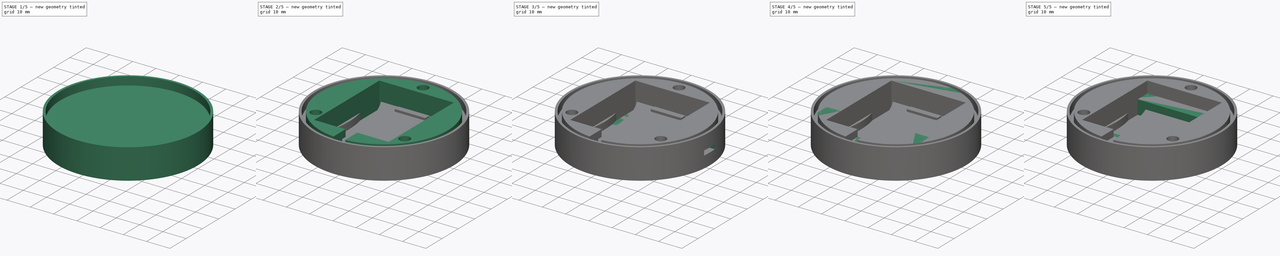
[diagram: build sequence overview — one tinted view per stage of 5, left to right]
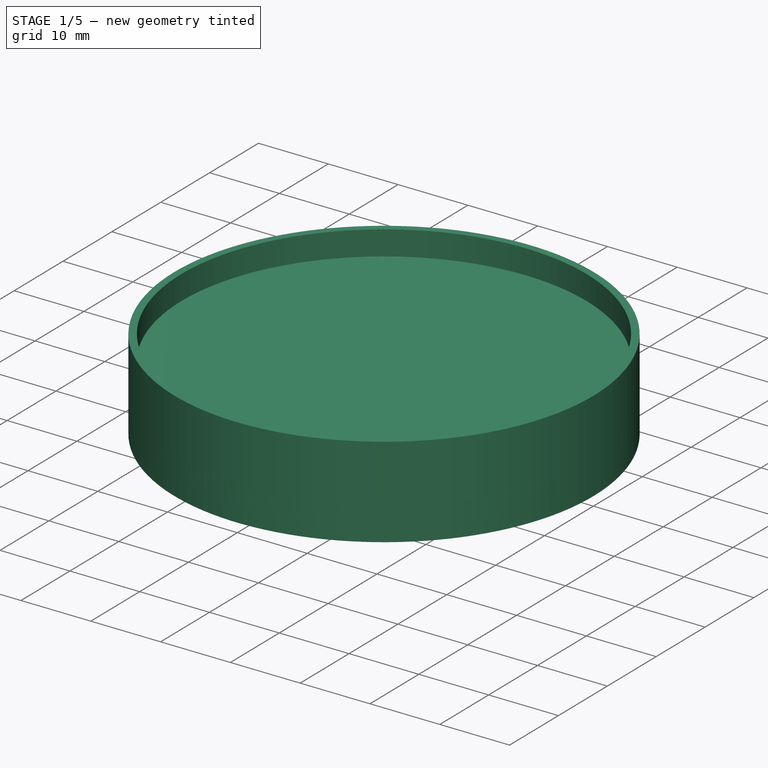
[diagram: stage 1 of 5 — iso view after this stage's code; geometry added in this stage tinted green]
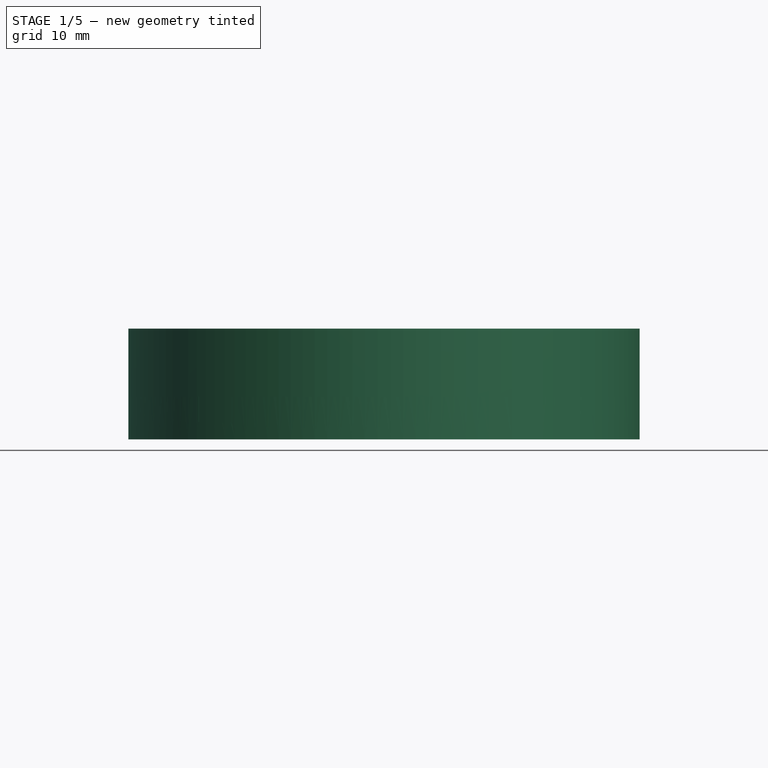
[diagram: stage 1 of 5 — front view after this stage's code; geometry added in this stage tinted green]
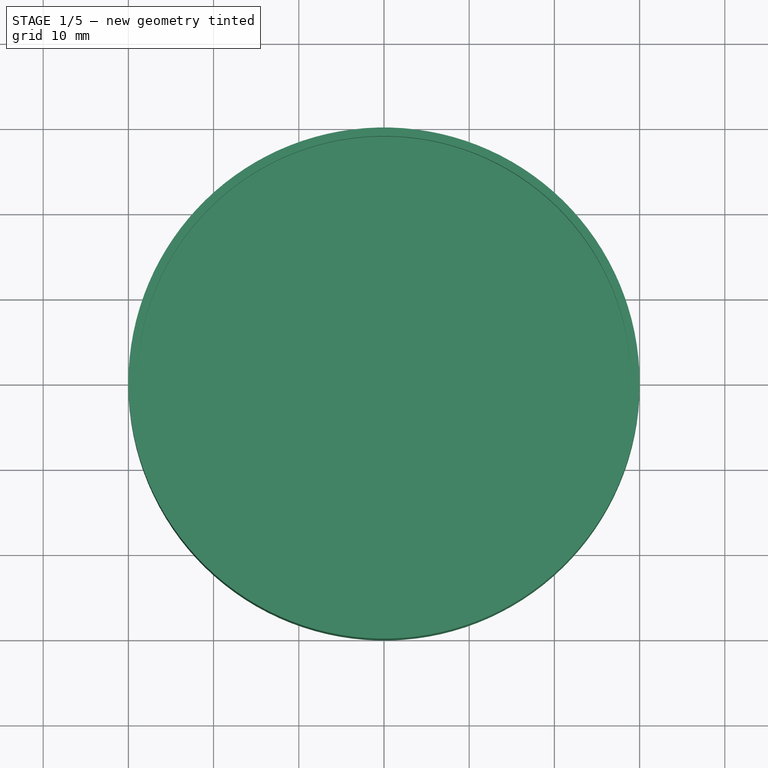
[diagram: stage 1 of 5 — top view after this stage's code; geometry added in this stage tinted green]
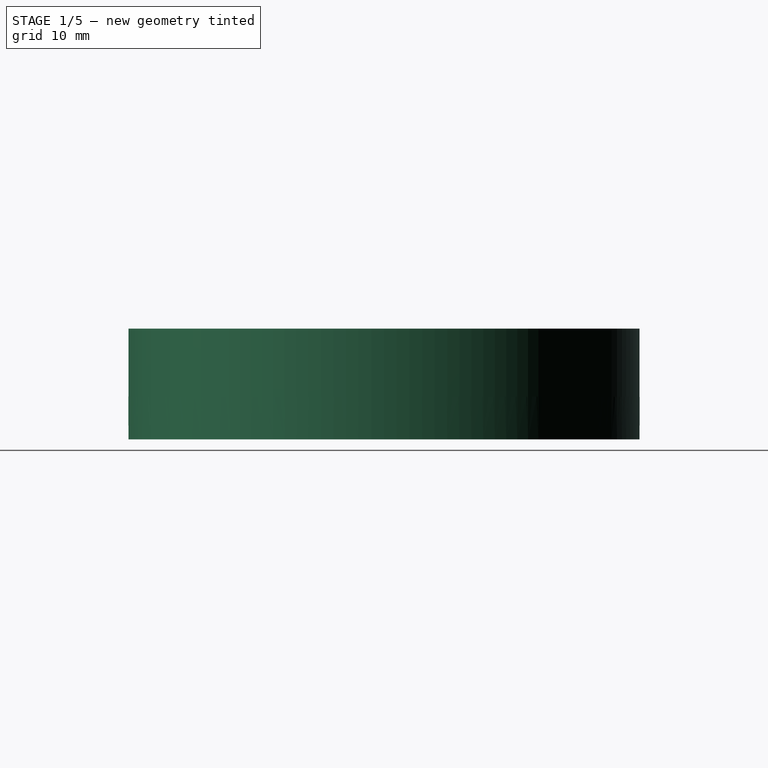
[diagram: stage 1 of 5 — right view after this stage's code; geometry added in this stage tinted green]
FCSTD DOCUMENT  (FreeCAD 0.19R24276 (Git))
Label: NecklaceCaseSmaller
License: All rights reserved
LicenseURL: http://en.wikipedia.org/wiki/All_rights_reserved
objects: Sketcher::SketchObject×32, PartDesign::Pocket×21, PartDesign::Pad×10, PartDesign::Body×6, Part::Feature×1
note: 101 computed .brp shape members not serialized (recipe doc carries the construction recipe); baked Part::Feature solids carry a one-line shape summary decoded from their .brp

FEATURE [Sketcher::SketchObject] Sketch008
  FullyConstrained = true
  MapMode = 5
  Support = -> [XY_Plane003]
  sketch-geometry (1):
    g0: Circle CenterX=0 CenterY=0 CenterZ=0 NormalX=0 NormalY=0 NormalZ=1 AngleXU=0 Radius=30
  constraints (2):
    c: Coincident(g0,g-1)
    c: Diameter(g0) = 60
FEATURE [PartDesign::Pad] Pad004
  Direction = (1,1,1)
  Length = 5
  Length2 = 100
  Profile = -> Sketch008
  Type = 0
FEATURE [Sketcher::SketchObject] Sketch009
  FullyConstrained = true
  MapMode = 5
  Placement = pos=(0,0,5) rot=(0,0,1;0rad)
  Support = -> [Pad004]
  sketch-geometry (2):
    g0: Circle CenterX=-50 CenterY=0 CenterZ=0 NormalX=0 NormalY=0 NormalZ=1 AngleXU=0 Radius=40
    g1: Circle CenterX=-50 CenterY=0 CenterZ=0 NormalX=0 NormalY=0 NormalZ=1 AngleXU=0 Radius=35
  constraints (6):
    c: PointOnObject(g0,g-1)
    c: PointOnObject(g1,g-1)
    c: Diameter(g0) = 80
    c: Diameter(g1) = 70
    c: DistanceX(g0,g-1) = 50
    c: DistanceX(g1,g-1) = 50
FEATURE [PartDesign::Pocket] Pocket002
  BaseFeature = -> Pad004
  Length = 3
  Length2 = 100
  Profile = -> Sketch009
  Type = 0
FEATURE [Sketcher::SketchObject] Sketch015
  FullyConstrained = true
  MapMode = 5
  Placement = pos=(0,0,5) rot=(0,0,1;0rad)
  Support = -> [Pocket002]
  sketch-geometry (3):
    g0: Circle CenterX=-24 CenterY=0 CenterZ=0 NormalX=0 NormalY=0 NormalZ=1 AngleXU=0 Radius=1.75
    g1: Circle CenterX=14.5208 CenterY=19.1088 CenterZ=0 NormalX=0 NormalY=0 NormalZ=1 AngleXU=0 Radius=1.75
    g2: Circle CenterX=14.5208 CenterY=-19.1088 CenterZ=0 NormalX=0 NormalY=0 NormalZ=1 AngleXU=0 Radius=1.75
  constraints (9):
    c: Diameter(g0) = 3.5
    c: Diameter(g1) = 3.5
    c: Diameter(g2) = 3.5
    c: DistanceY(g-1,g0) = 0
    c: Distance(g-1,g0) = 24
    c: Distance(g-1,g1) = 24
    c: Distance(g-1,g2) = 24
    c: Distance(g0,g1) = 43
    c: Distance(g0,g2) = 43
FEATURE [PartDesign::Pocket] Pocket008
  BaseFeature = -> Pocket002
  Length = 5
  Length2 = 100
  Profile = -> Sketch015
  Type = 0
FEATURE [PartDesign::Body] Body004  label="ring"
  Group = -> [Sketch025,Pad005,Sketch026,Pocket017]
  Origin = -> Origin004
  Placement = pos=(0,0,23) rot=(0,0,1;0rad)
  Tip = -> Pocket017
FEATURE [Sketcher::SketchObject] Sketch027
  FullyConstrained = true
  MapMode = 5
  Support = -> [XY_Plane005]
  sketch-geometry (1):
    g0: Circle CenterX=0 CenterY=0 CenterZ=0 NormalX=0 NormalY=0 NormalZ=1 AngleXU=0 Radius=30
  constraints (2):
    c: Coincident(g0,g-1)
    c: Diameter(g0) = 60
FEATURE [PartDesign::Pad] Pad006
  Direction = (1,1,1)
  Length = 13
  Length2 = 100
  Profile = -> Sketch027
  Type = 0
FEATURE [Sketcher::SketchObject] Sketch028
  FullyConstrained = true
  MapMode = 5
  Placement = pos=(0,0,13) rot=(0,0,1;0rad)
  Support = -> [Pad006]
  sketch-geometry (1):
    g0: Circle CenterX=0 CenterY=0 CenterZ=0 NormalX=0 NormalY=0 NormalZ=1 AngleXU=0 Radius=29
  constraints (2):
    c: Coincident(g0,g-1)
    c: Diameter(g0) = 58
FEATURE [PartDesign::Pocket] Pocket018
  BaseFeature = -> Pad006
  Length = 3.5
  Length2 = 100
  Profile = -> Sketch028
  Type = 0
FEATURE [PartDesign::Body] Body005  label="ALT-bottom-upsidedown"
  Group = -> [Sketch027,Pad006,Sketch028,Pocket018,Sketch029,Pad007,Sketch031,Pocket020,Sketch032,Pocket021,Sketch033,Pocket022,Sketch034,Pocket023,Sketch035,Pocket024,Sketch036,Pocket025,Sketch037,Pad008]
  Origin = -> Origin005
  Placement = pos=(0,0,5) rot=(0,0,1;1.5708rad)
  Tip = -> Pad008
FEATURE [Sketcher::SketchObject] Sketch038
  FullyConstrained = true
  MapMode = 5
  Placement = pos=(0,0,5) rot=(0,0,1;0rad)
  Support = -> [Pocket008]
  sketch-geometry (4):
    g0: LineSegment StartX=-6.6 StartY=18.5 StartZ=0 EndX=6.6 EndY=18.5 EndZ=0
    g1: LineSegment StartX=6.6 StartY=18.5 StartZ=0 EndX=6.6 EndY=16 EndZ=0
    g2: LineSegment StartX=6.6 StartY=16 StartZ=0 EndX=-6.6 EndY=16 EndZ=0
    g3: LineSegment StartX=-6.6 StartY=16 StartZ=0 EndX=-6.6 EndY=18.5 EndZ=0
  constraints (11):
    c: Coincident(g0,g1)
    c: Coincident(g1,g2)
    c: Coincident(g2,g3)
    c: Coincident(g3,g0)
    c: Horizontal(g0)
    c: Vertical(g1)
    c: Vertical(g3)
    c: DistanceY(g1,g1) = 2.5
    c: DistanceX(g2,g2) = 13.2
    c: Symmetric(g2,g1,g-2)
    c: DistanceY(g-1,g1) = 16
FEATURE [PartDesign::Pad] Pad009
  BaseFeature = -> Pocket008
  Direction = (1,1,1)
  Length = 1
  Length2 = 100
  Profile = -> Sketch038
  Type = 0
FEATURE [PartDesign::Body] Body003  label="attachment layer"
  Group = -> [Sketch008,Pad004,Sketch009,Pocket002,Sketch015,Pocket008,Sketch038,Pad009]
  Origin = -> Origin003
  Tip = -> Pad009
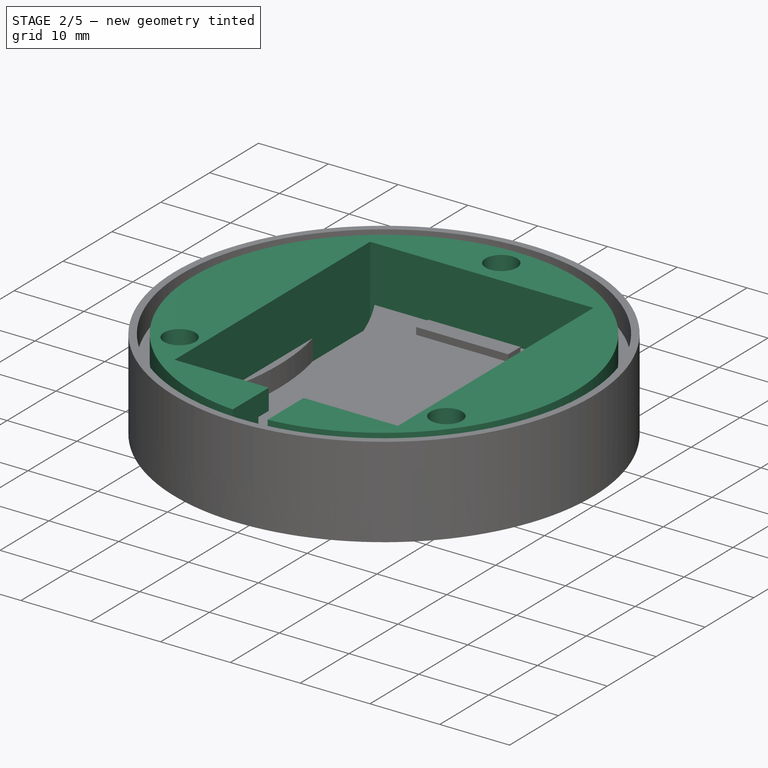
[diagram: stage 2 of 5 — iso view after this stage's code; geometry added in this stage tinted green]
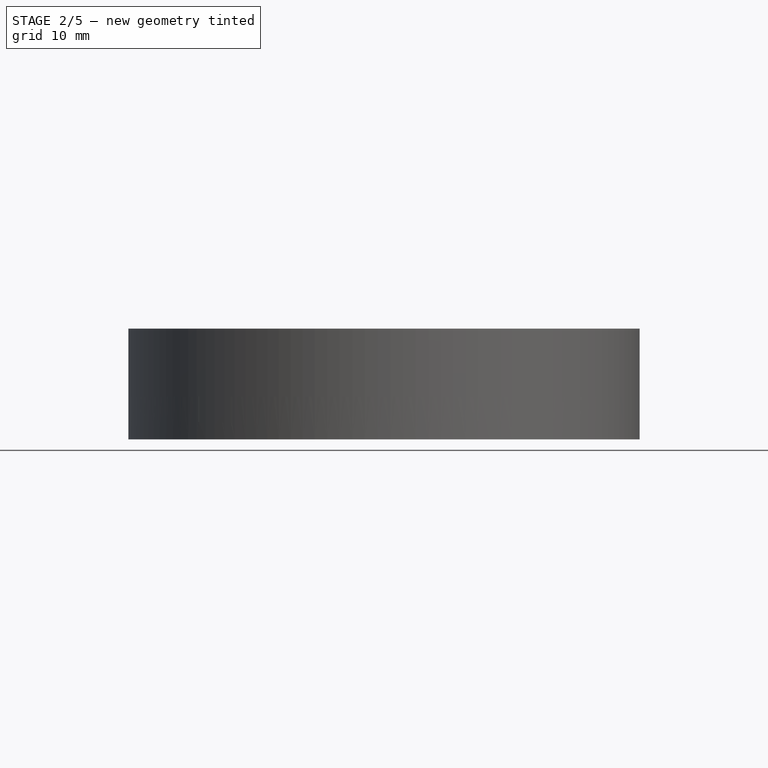
[diagram: stage 2 of 5 — front view after this stage's code; geometry added in this stage tinted green]
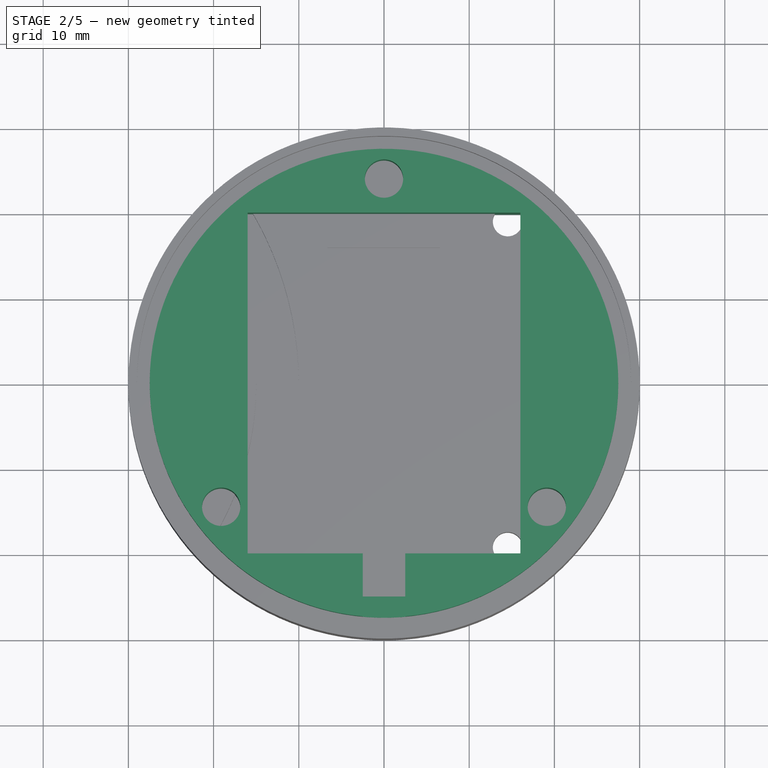
[diagram: stage 2 of 5 — top view after this stage's code; geometry added in this stage tinted green]
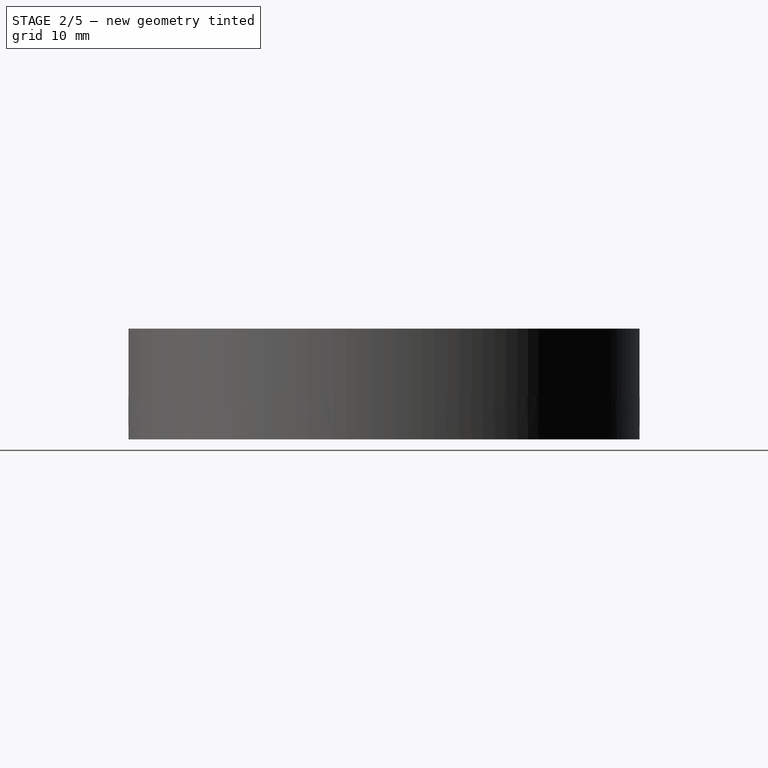
[diagram: stage 2 of 5 — right view after this stage's code; geometry added in this stage tinted green]
FEATURE [Sketcher::SketchObject] Sketch029
  FullyConstrained = true
  MapMode = 5
  Placement = pos=(0,0,9.5) rot=(0,0,1;0rad)
  Support = -> [Pocket018]
  sketch-geometry (1):
    g0: Circle CenterX=0 CenterY=0 CenterZ=0 NormalX=0 NormalY=0 NormalZ=1 AngleXU=0 Radius=27.5
  constraints (2):
    c: Coincident(g0,g-1)
    c: Diameter(g0) = 55
FEATURE [PartDesign::Pad] Pad007
  BaseFeature = -> Pocket018
  Direction = (1,1,1)
  Length = 3.5
  Length2 = 100
  Profile = -> Sketch029
  Type = 0
FEATURE [Sketcher::SketchObject] Sketch031
  FullyConstrained = true
  MapMode = 5
  Placement = pos=(0,0,13) rot=(0,0,1;0rad)
  sketch-geometry (4):
    g0: LineSegment StartX=-16 StartY=20 StartZ=0 EndX=16 EndY=20 EndZ=0
    g1: LineSegment StartX=16 StartY=20 StartZ=0 EndX=16 EndY=-20 EndZ=0
    g2: LineSegment StartX=16 StartY=-20 StartZ=0 EndX=-16 EndY=-20 EndZ=0
    g3: LineSegment StartX=-16 StartY=-20 StartZ=0 EndX=-16 EndY=20 EndZ=0
  constraints (10):
    c: Coincident(g0,g1)
    c: Coincident(g1,g2)
    c: Coincident(g2,g3)
    c: Coincident(g3,g0)
    c: Horizontal(g2)
    c: Vertical(g3)
    c: DistanceX(g0,g0) = 32
    c: Symmetric(g0,g0,g-2)
    c: DistanceY(g1,g1) = 40
    c: Symmetric(g1,g0,g-1)
FEATURE [PartDesign::Pocket] Pocket020
  BaseFeature = -> Pad007
  Length = 13
  Length2 = 100
  Profile = -> Sketch031
  Type = 0
FEATURE [Sketcher::SketchObject] Sketch032
  FullyConstrained = true
  MapMode = 5
  Placement = pos=(0,-20,0) rot=(0,0.707107,0.707107;3.14159rad)
  Support = -> [Pocket020]
  sketch-geometry (4):
    g0: LineSegment StartX=-2.5 StartY=13 StartZ=0 EndX=2.5 EndY=13 EndZ=0
    g1: LineSegment StartX=2.5 StartY=13 StartZ=0 EndX=2.5 EndY=10 EndZ=0
    g2: LineSegment StartX=2.5 StartY=10 StartZ=0 EndX=-2.5 EndY=10 EndZ=0
    g3: LineSegment StartX=-2.5 StartY=10 StartZ=0 EndX=-2.5 EndY=13 EndZ=0
  constraints (11):
    c: Coincident(g0,g1)
    c: Coincident(g1,g2)
    c: Coincident(g2,g3)
    c: Coincident(g3,g0)
    c: Horizontal(g0)
    c: Vertical(g1)
    c: Vertical(g3)
    c: DistanceX(g2,g2) = 5
    c: Symmetric(g2,g1,g-2)
    c: DistanceY(g-1,g0) = 13
    c: DistanceY(g3,g3) = 3
FEATURE [PartDesign::Pocket] Pocket021
  BaseFeature = -> Pocket020
  Length = 8
  Length2 = 100
  Profile = -> Sketch032
  Type = 0
FEATURE [Sketcher::SketchObject] Sketch033
  FullyConstrained = true
  MapMode = 5
  Placement = pos=(0,0,13) rot=(0,0,1;0rad)
  Support = -> [Pocket021]
  sketch-geometry (3):
    g0: Circle CenterX=-19.1088 CenterY=-14.5208 CenterZ=0 NormalX=0 NormalY=0 NormalZ=1 AngleXU=0 Radius=2.25
    g1: Circle CenterX=0 CenterY=24 CenterZ=0 NormalX=0 NormalY=0 NormalZ=1 AngleXU=0 Radius=2.25
    g2: Circle CenterX=19.1088 CenterY=-14.5208 CenterZ=0 NormalX=0 NormalY=0 NormalZ=1 AngleXU=0 Radius=2.25
  constraints (9):
    c: Distance(g-1,g1) = 24
    c: Distance(g2,g-1) = 24
    c: Distance(g0,g-1) = 24
    c: Diameter(g0) = 4.5
    c: Diameter(g1) = 4.5
    c: Diameter(g2) = 4.5
    c: Distance(g1,g2) = 43
    c: Distance(g1,g0) = 43
    c: DistanceX(g-1,g1) = 0
FEATURE [PartDesign::Pocket] Pocket022
  BaseFeature = -> Pocket021
  Length = 20
  Length2 = 100
  Profile = -> Sketch033
  Type = 0
FEATURE [Sketcher::SketchObject] Sketch034
  FullyConstrained = true
  MapMode = 5
  Placement = pos=(0,0,0) rot=(1,0,0;3.14159rad)
  Support = -> [Pocket022]
  sketch-geometry (4):
    g0: LineSegment StartX=-4 StartY=25 StartZ=0 EndX=4 EndY=25 EndZ=0
    g1: LineSegment StartX=4 StartY=25 StartZ=0 EndX=4 EndY=20 EndZ=0
    g2: LineSegment StartX=4 StartY=20 StartZ=0 EndX=-4 EndY=20 EndZ=0
    g3: LineSegment StartX=-4 StartY=20 StartZ=0 EndX=-4 EndY=25 EndZ=0
  constraints (11):
    c: Coincident(g0,g1)
    c: Coincident(g1,g2)
    c: Coincident(g2,g3)
    c: Coincident(g3,g0)
    c: Horizontal(g0)
    c: Vertical(g1)
    c: Vertical(g3)
    c: DistanceY(g1,g1) = 5
    c: DistanceX(g0,g0) = 8
    c: Symmetric(g2,g1,g-2)
    c: DistanceY(g-1,g1) = 20
FEATURE [PartDesign::Pocket] Pocket023
  BaseFeature = -> Pocket022
  Length = 10
  Length2 = 100
  Profile = -> Sketch034
  Type = 0
FEATURE [Sketcher::SketchObject] Sketch035
  FullyConstrained = true
  MapMode = 5
  Placement = pos=(16,0,0) rot=(0.57735,-0.57735,-0.57735;2.0944rad)
  Support = -> [Pocket023]
  sketch-geometry (4):
    g0: LineSegment StartX=-6.6 StartY=7 StartZ=0 EndX=6.6 EndY=7 EndZ=0
    g1: LineSegment StartX=6.6 StartY=7 StartZ=0 EndX=6.6 EndY=0 EndZ=0
    g2: LineSegment StartX=6.6 StartY=0 StartZ=0 EndX=-6.6 EndY=0 EndZ=0
    g3: LineSegment StartX=-6.6 StartY=0 StartZ=0 EndX=-6.6 EndY=7 EndZ=0
  constraints (11):
    c: Coincident(g0,g1)
    c: Coincident(g1,g2)
    c: Coincident(g2,g3)
    c: Coincident(g3,g0)
    c: Horizontal(g0)
    c: Vertical(g1)
    c: Vertical(g3)
    c: PointOnObject(g2,g-1)
    c: Symmetric(g2,g1,g-2)
    c: DistanceY(g1,g1) = 7
    c: DistanceX(g0,g0) = 13.2
FEATURE [PartDesign::Pocket] Pocket024
  BaseFeature = -> Pocket023
  Length = 9
  Length2 = 100
  Profile = -> Sketch035
  Type = 0
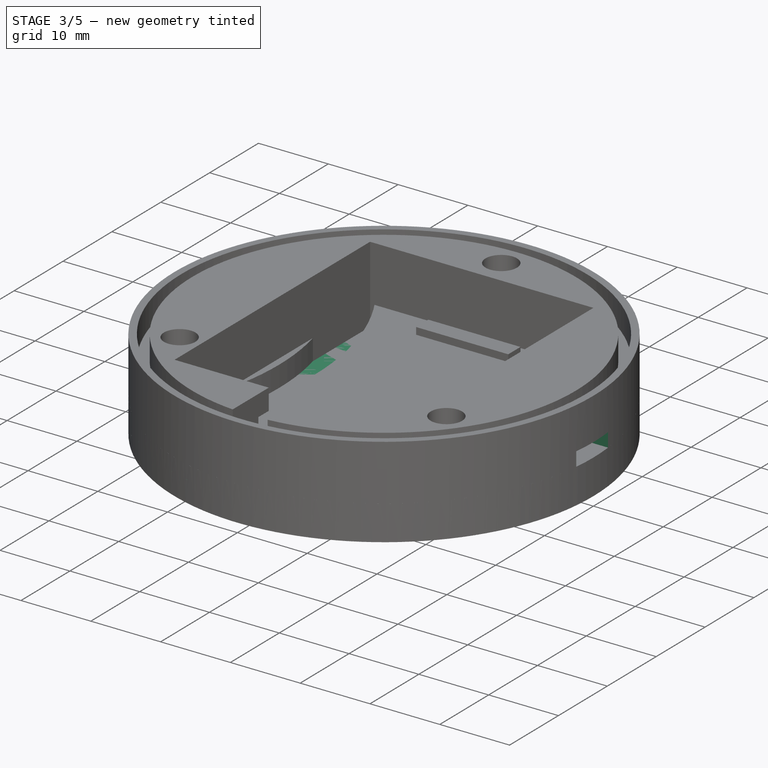
[diagram: stage 3 of 5 — iso view after this stage's code; geometry added in this stage tinted green]
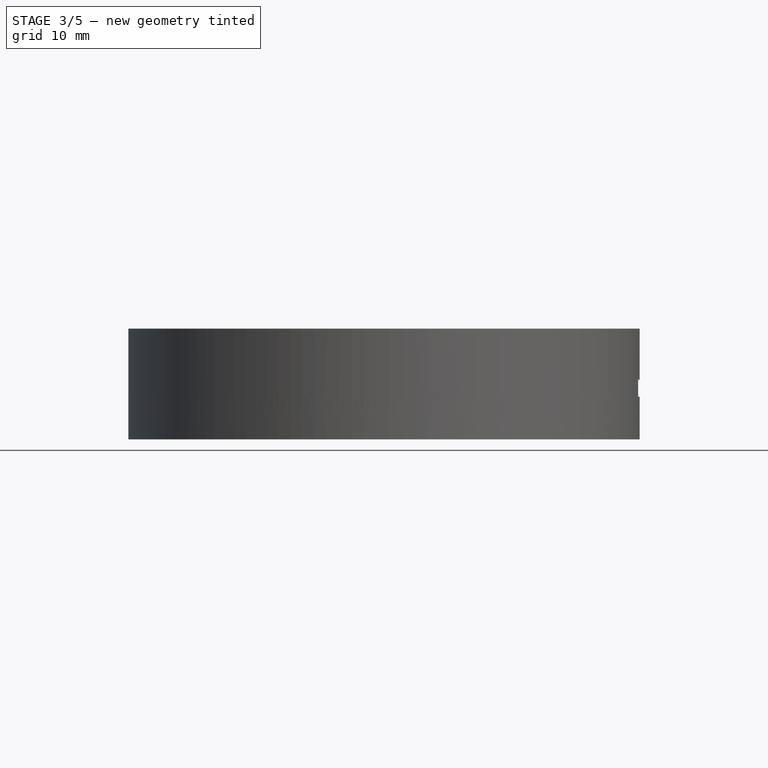
[diagram: stage 3 of 5 — front view after this stage's code; geometry added in this stage tinted green]
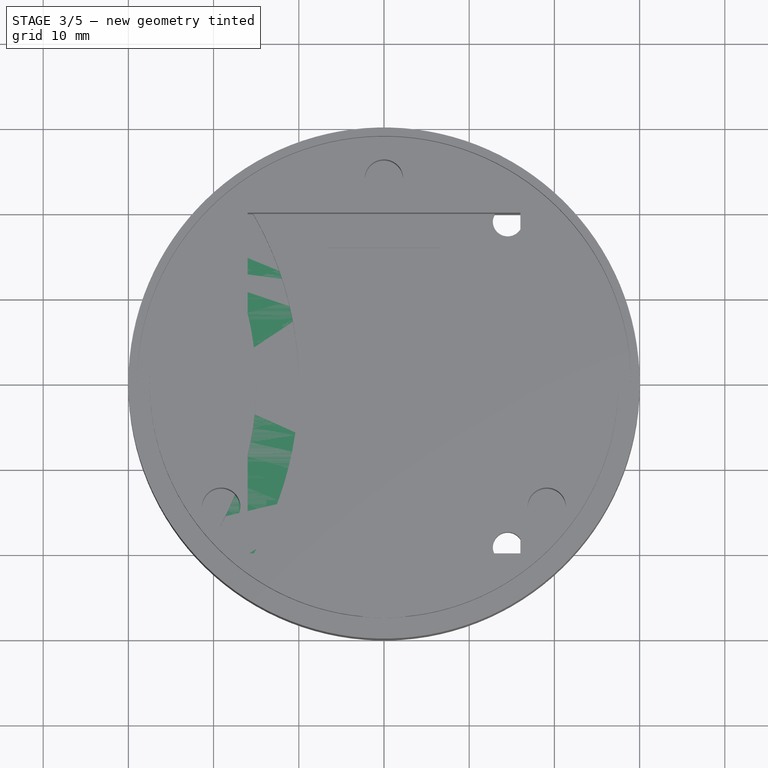
[diagram: stage 3 of 5 — top view after this stage's code; geometry added in this stage tinted green]
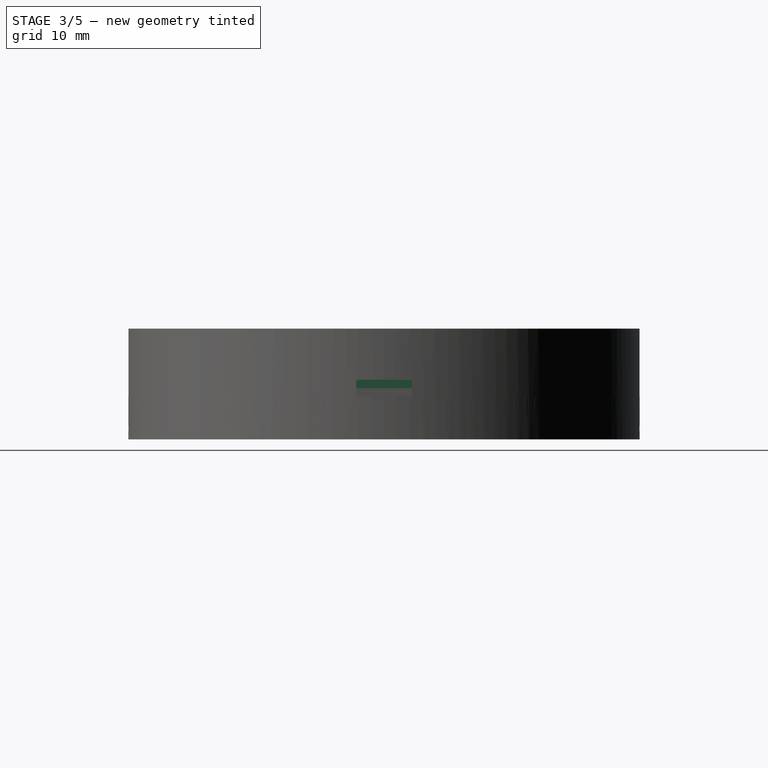
[diagram: stage 3 of 5 — right view after this stage's code; geometry added in this stage tinted green]
FEATURE [Sketcher::SketchObject] Sketch003
  FullyConstrained = true
  MapMode = 5
  Support = -> [XY_Plane001]
  sketch-geometry (1):
    g0: Circle CenterX=0 CenterY=0 CenterZ=0 NormalX=0 NormalY=0 NormalZ=1 AngleXU=0 Radius=30
  constraints (2):
    c: Coincident(g-1,g0)
    c: Diameter(g0) = 60
FEATURE [PartDesign::Pad] Pad001
  Direction = (1,1,1)
  Length = 2
  Length2 = 100
  Profile = -> Sketch003
  Type = 0
FEATURE [PartDesign::Body] Body002  label="bottom"
  Group = -> [Sketch005,Pad002,Sketch006,Pocket001,Sketch007,Pad003,Sketch010,Pocket003,Sketch018,Pocket011,Sketch020,Pocket012,Sketch023,Pocket015]
  Origin = -> Origin002
  Placement = pos=(0,0,5) rot=(0,0,1;1.5708rad)
  Tip = -> Pocket015
FEATURE [Sketcher::SketchObject] Sketch012
  FullyConstrained = true
  MapMode = 5
  Placement = pos=(0,0,2) rot=(0,0,1;0rad)
  Support = -> [Pad001]
  sketch-geometry (4):
    g0: Circle CenterX=14.5208 CenterY=19.1088 CenterZ=0 NormalX=0 NormalY=0 NormalZ=1 AngleXU=0 Radius=1.75
    g1: Circle CenterX=-24 CenterY=0 CenterZ=0 NormalX=0 NormalY=0 NormalZ=1 AngleXU=0 Radius=1.75
    g2: Circle CenterX=14.5208 CenterY=-19.1088 CenterZ=0 NormalX=0 NormalY=0 NormalZ=1 AngleXU=0 Radius=1.75
    g3: Circle CenterX=0 CenterY=0 CenterZ=0 NormalX=0 NormalY=0 NormalZ=1 AngleXU=0 Radius=40
  constraints (11):
    c: PointOnObject(g1,g-1)
    c: Diameter(g1) = 3.5
    c: Diameter(g2) = 3.5
    c: Diameter(g0) = 3.5
    c: DistanceX(g1,g-1) = 24
    c: Radius(g3) = 40
    c: Coincident(g3,g-1)
    c: Distance(g0,g-1) = 24
    c: Distance(g-1,g2) = 24
    c: Distance(g1,g0) = 43
    c: Distance(g1,g2) = 43
FEATURE [PartDesign::Pocket] Pocket005
  BaseFeature = -> Pad001
  Length = 5
  Length2 = 100
  Profile = -> Sketch012
  Type = 0
FEATURE [Sketcher::SketchObject] Sketch024
  FullyConstrained = true
  MapMode = 5
  Placement = pos=(0,0,2) rot=(0,0,1;0rad)
  Support = -> [Pocket005]
  sketch-geometry (8):
    g0: LineSegment StartX=-9 StartY=12 StartZ=0 EndX=16 EndY=12 EndZ=0
    g1: LineSegment StartX=16 StartY=12 StartZ=0 EndX=16 EndY=8.5 EndZ=0
    g2: LineSegment StartX=16 StartY=8.5 StartZ=0 EndX=-9 EndY=8.5 EndZ=0
    g3: LineSegment StartX=-9 StartY=8.5 StartZ=0 EndX=-9 EndY=12 EndZ=0
    g4: LineSegment StartX=-4 StartY=-8.5 StartZ=0 EndX=16 EndY=-8.5 EndZ=0
    g5: LineSegment StartX=16 StartY=-8.5 StartZ=0 EndX=16 EndY=-12 EndZ=0
    g6: LineSegment StartX=16 StartY=-12 StartZ=0 EndX=-4 EndY=-12 EndZ=0
    g7: LineSegment StartX=-4 StartY=-12 StartZ=0 EndX=-4 EndY=-8.5 EndZ=0
  constraints (24):
    c: Coincident(g0,g1)
    c: Coincident(g1,g2)
    c: Coincident(g2,g3)
    c: Coincident(g3,g0)
    c: Horizontal(g0)
    c: Horizontal(g2)
    c: Vertical(g1)
    c: Vertical(g3)
    c: Coincident(g4,g5)
    c: Coincident(g5,g6)
    c: Coincident(g6,g7)
    c: Coincident(g7,g4)
    c: Horizontal(g4)
    c: Horizontal(g6)
    c: Vertical(g5)
    c: Vertical(g7)
    c: DistanceX(g0,g0) = 25
    c: DistanceY(g1,g1) = 3.5
    c: DistanceY(g5,g5) = 3.5
    c: DistanceX(g4,g4) = 20
    c: DistanceY(g4,g-1) = 8.5
    c: DistanceY(g-1,g2) = 8.5
    c: DistanceX(g-1,g1) = 16
    c: DistanceX(g-1,g4) = 16
FEATURE [PartDesign::Pocket] Pocket016
  BaseFeature = -> Pocket005
  Length = 5
  Length2 = 100
  Profile = -> Sketch024
  Type = 0
FEATURE [PartDesign::Body] Body001  label="top"
  Group = -> [Sketch003,Pad001,Sketch012,Pocket005,Sketch024,Pocket016]
  Origin = -> Origin001
  Placement = pos=(0,0,26) rot=(0,0,1;0rad)
  Tip = -> Pocket016
FEATURE [Sketcher::SketchObject] Sketch025
  FullyConstrained = true
  MapMode = 5
  Support = -> [XY_Plane004]
  sketch-geometry (1):
    g0: Circle CenterX=0 CenterY=0 CenterZ=0 NormalX=0 NormalY=0 NormalZ=1 AngleXU=0 Radius=30
  constraints (2):
    c: Coincident(g0,g-1)
    c: Radius(g0) = 30
FEATURE [PartDesign::Pad] Pad005
  Direction = (1,1,1)
  Length = 3
  Length2 = 100
  Profile = -> Sketch025
  Type = 0
FEATURE [Sketcher::SketchObject] Sketch026
  FullyConstrained = true
  MapMode = 5
  Placement = pos=(0,0,3) rot=(0,0,1;0rad)
  Support = -> [Pad005]
  sketch-geometry (1):
    g0: Circle CenterX=0 CenterY=0 CenterZ=0 NormalX=0 NormalY=0 NormalZ=1 AngleXU=0 Radius=28
  constraints (2):
    c: Coincident(g0,g-1)
    c: Diameter(g0) = 56
FEATURE [PartDesign::Pocket] Pocket017
  BaseFeature = -> Pad005
  Length = 5
  Length2 = 100
  Profile = -> Sketch026
  Type = 0
FEATURE [Sketcher::SketchObject] Sketch036
  FullyConstrained = true
  MapMode = 5
  Placement = pos=(25,0,0) rot=(0.57735,-0.57735,-0.57735;2.0944rad)
  Support = -> [Pocket024]
  sketch-geometry (4):
    g0: LineSegment StartX=-3.25 StartY=7 StartZ=0 EndX=3.25 EndY=7 EndZ=0
    g1: LineSegment StartX=3.25 StartY=7 StartZ=0 EndX=3.25 EndY=0 EndZ=0
    g2: LineSegment StartX=3.25 StartY=0 StartZ=0 EndX=-3.25 EndY=0 EndZ=0
    g3: LineSegment StartX=-3.25 StartY=0 StartZ=0 EndX=-3.25 EndY=7 EndZ=0
  constraints (11):
    c: Coincident(g0,g1)
    c: Coincident(g1,g2)
    c: Coincident(g2,g3)
    c: Coincident(g3,g0)
    c: Horizontal(g2)
    c: Vertical(g1)
    c: Vertical(g3)
    c: PointOnObject(g1,g-1)
    c: Symmetric(g0,g0,g-2)
    c: DistanceY(g3,g3) = 7
    c: DistanceX(g2,g2) = 6.5
FEATURE [PartDesign::Pocket] Pocket025
  BaseFeature = -> Pocket024
  Length = 5
  Length2 = 100
  Profile = -> Sketch036
  Type = 0
FEATURE [Sketcher::SketchObject] Sketch037
  FullyConstrained = true
  MapMode = 5
  Placement = pos=(0,0,7) rot=(1,0,0;3.14159rad)
  Support = -> [Pocket025]
  sketch-geometry (4):
    g0: LineSegment StartX=16 StartY=6.6 StartZ=0 EndX=18 EndY=6.6 EndZ=0
    g1: LineSegment StartX=18 StartY=6.6 StartZ=0 EndX=18 EndY=-6.6 EndZ=0
    g2: LineSegment StartX=18 StartY=-6.6 StartZ=0 EndX=16 EndY=-6.6 EndZ=0
    g3: LineSegment StartX=16 StartY=-6.6 StartZ=0 EndX=16 EndY=6.6 EndZ=0
  constraints (11):
    c: Coincident(g0,g1)
    c: Coincident(g1,g2)
    c: Coincident(g2,g3)
    c: Coincident(g3,g0)
    c: Horizontal(g0)
    c: Horizontal(g2)
    c: Vertical(g1)
    c: DistanceX(g2,g2) = 2
    c: DistanceY(g1,g1) = 13.2
    c: Symmetric(g0,g2,g-1)
    c: DistanceX(g-1,g0) = 16
FEATURE [PartDesign::Pad] Pad008
  BaseFeature = -> Pocket025
  Direction = (1,1,1)
  Length = 1
  Length2 = 100
  Profile = -> Sketch037
  Type = 0
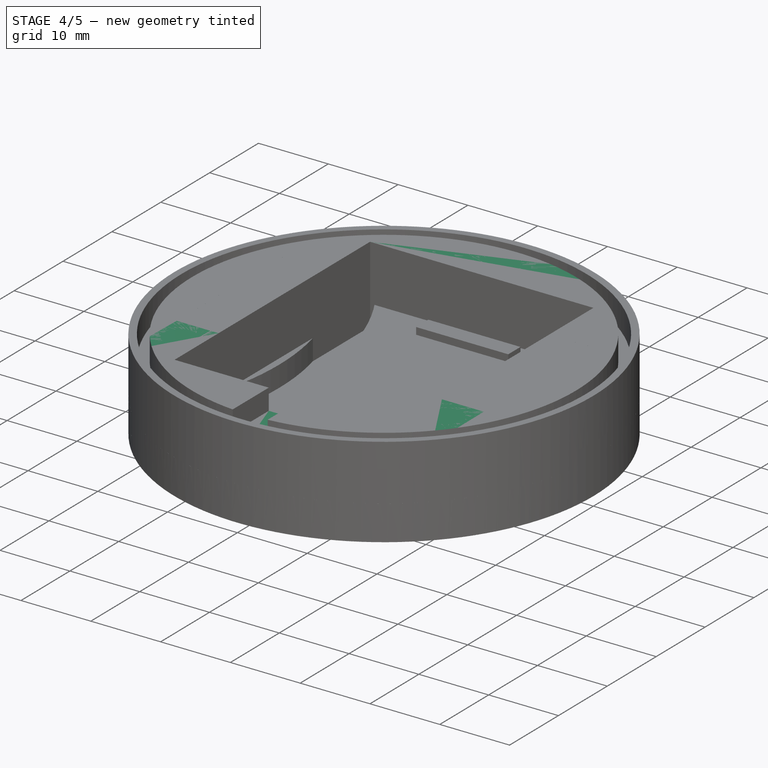
[diagram: stage 4 of 5 — iso view after this stage's code; geometry added in this stage tinted green]
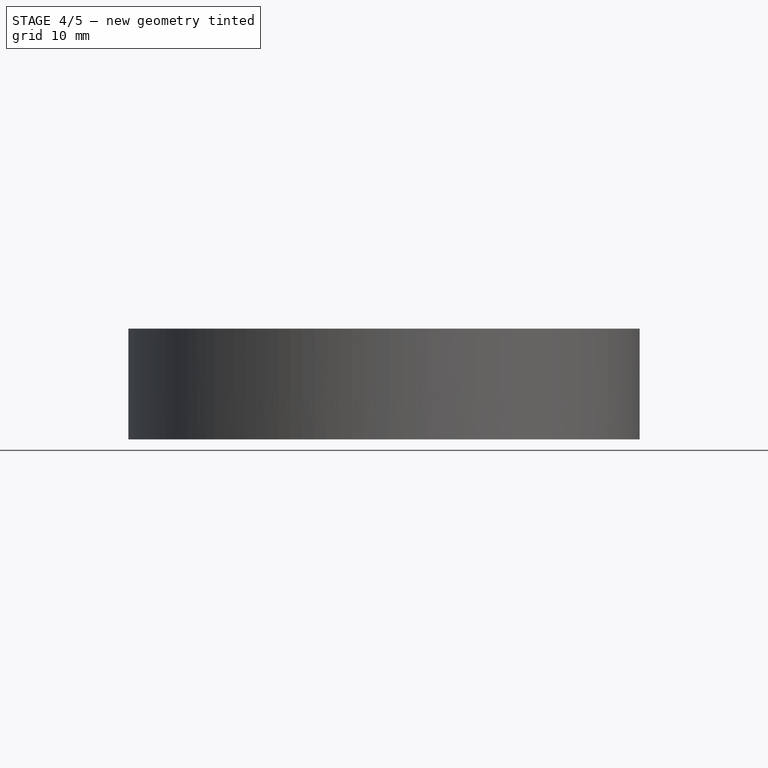
[diagram: stage 4 of 5 — front view after this stage's code; geometry added in this stage tinted green]
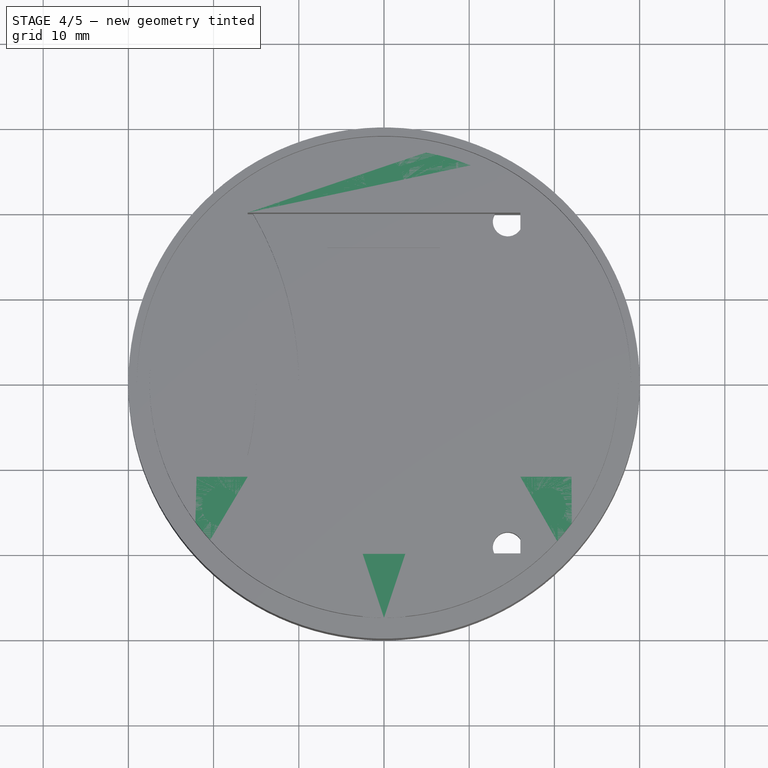
[diagram: stage 4 of 5 — top view after this stage's code; geometry added in this stage tinted green]
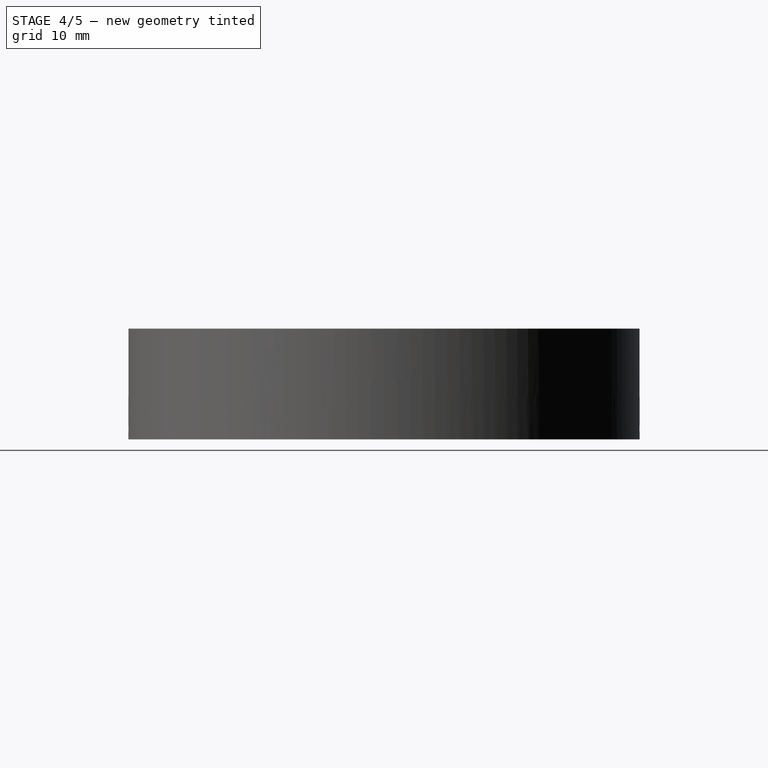
[diagram: stage 4 of 5 — right view after this stage's code; geometry added in this stage tinted green]
FEATURE [Sketcher::SketchObject] Sketch004
  FullyConstrained = true
  MapMode = 5
  Support = -> [XY_Plane]
  sketch-geometry (1):
    g0: Circle CenterX=0 CenterY=0 CenterZ=0 NormalX=0 NormalY=0 NormalZ=1 AngleXU=0 Radius=47.5
  constraints (2):
    c: Diameter(g0) = 95
    c: Coincident(g0,g-1)
FEATURE [Sketcher::SketchObject] Sketch005
  FullyConstrained = true
  MapMode = 5
  Support = -> [XY_Plane002]
  sketch-geometry (1):
    g0: Circle CenterX=0 CenterY=0 CenterZ=0 NormalX=0 NormalY=0 NormalZ=1 AngleXU=0 Radius=30
  constraints (2):
    c: Coincident(g0,g-1)
    c: Diameter(g0) = 60
FEATURE [PartDesign::Pad] Pad002
  Direction = (1,1,1)
  Length = 13
  Length2 = 100
  Profile = -> Sketch005
  Type = 0
FEATURE [Sketcher::SketchObject] Sketch006
  FullyConstrained = true
  MapMode = 5
  Placement = pos=(0,0,13) rot=(0,0,1;0rad)
  Support = -> [Pad002]
  sketch-geometry (1):
    g0: Circle CenterX=0 CenterY=0 CenterZ=0 NormalX=0 NormalY=0 NormalZ=1 AngleXU=0 Radius=29
  constraints (2):
    c: Coincident(g0,g-1)
    c: Diameter(g0) = 58
FEATURE [PartDesign::Pocket] Pocket001
  BaseFeature = -> Pad002
  Length = 3.5
  Length2 = 100
  Profile = -> Sketch006
  Type = 0
FEATURE [Sketcher::SketchObject] Sketch007
  FullyConstrained = true
  MapMode = 5
  Placement = pos=(0,0,9.5) rot=(0,0,1;0rad)
  Support = -> [Pocket001]
  sketch-geometry (1):
    g0: Circle CenterX=0 CenterY=0 CenterZ=0 NormalX=0 NormalY=0 NormalZ=1 AngleXU=0 Radius=27.5
  constraints (2):
    c: Coincident(g0,g-1)
    c: Diameter(g0) = 55
FEATURE [PartDesign::Pad] Pad003
  BaseFeature = -> Pocket001
  Direction = (1,1,1)
  Length = 3.5
  Length2 = 100
  Profile = -> Sketch007
  Type = 0
FEATURE [Sketcher::SketchObject] Sketch010
  FullyConstrained = true
  MapMode = 5
  Placement = pos=(0,0,13) rot=(0,0,1;0rad)
  Support = -> [Pad003]
  sketch-geometry (4):
    g0: LineSegment StartX=-22 StartY=11 StartZ=0 EndX=22 EndY=11 EndZ=0
    g1: LineSegment StartX=22 StartY=11 StartZ=0 EndX=22 EndY=-11 EndZ=0
    g2: LineSegment StartX=-22 StartY=-11 StartZ=0 EndX=-22 EndY=11 EndZ=0
    g3: LineSegment StartX=-22 StartY=-11 StartZ=0 EndX=22 EndY=-11 EndZ=0
  constraints (10):
    c: Coincident(g0,g1)
    c: Coincident(g2,g0)
    c: Vertical(g1)
    c: DistanceX(g0,g0) = 44
    c: DistanceY(g2,g2) = 22
    c: Horizontal(g3)
    c: Coincident(g1,g3)
    c: Coincident(g2,g3)
    c: Symmetric(g2,g0,g-1)
    c: Symmetric(g0,g0,g-2)
FEATURE [PartDesign::Pocket] Pocket003
  BaseFeature = -> Pad003
  Length = 7
  Length2 = 100
  Profile = -> Sketch010
  Type = 0
FEATURE [Sketcher::SketchObject] Sketch018
  FullyConstrained = true
  MapMode = 5
  Placement = pos=(0,0,13) rot=(0,0,1;0rad)
  Support = -> [Pocket003]
  sketch-geometry (4):
    g0: LineSegment StartX=-16 StartY=20 StartZ=0 EndX=16 EndY=20 EndZ=0
    g1: LineSegment StartX=16 StartY=20 StartZ=0 EndX=16 EndY=-20 EndZ=0
    g2: LineSegment StartX=16 StartY=-20 StartZ=0 EndX=-16 EndY=-20 EndZ=0
    g3: LineSegment StartX=-16 StartY=-20 StartZ=0 EndX=-16 EndY=20 EndZ=0
  constraints (10):
    c: Coincident(g0,g1)
    c: Coincident(g1,g2)
    c: Coincident(g2,g3)
    c: Coincident(g3,g0)
    c: Horizontal(g2)
    c: Vertical(g3)
    c: DistanceX(g0,g0) = 32
    c: Symmetric(g0,g0,g-2)
    c: DistanceY(g1,g1) = 40
    c: Symmetric(g1,g0,g-1)
FEATURE [PartDesign::Pocket] Pocket011
  BaseFeature = -> Pocket003
  Length = 13
  Length2 = 100
  Profile = -> Sketch018
  Type = 0
FEATURE [Sketcher::SketchObject] Sketch020
  FullyConstrained = true
  MapMode = 5
  Placement = pos=(0,-20,0) rot=(0,0.707107,0.707107;3.14159rad)
  Support = -> [Pocket011]
  sketch-geometry (4):
    g0: LineSegment StartX=-2.5 StartY=13 StartZ=0 EndX=2.5 EndY=13 EndZ=0
    g1: LineSegment StartX=2.5 StartY=13 StartZ=0 EndX=2.5 EndY=10 EndZ=0
    g2: LineSegment StartX=2.5 StartY=10 StartZ=0 EndX=-2.5 EndY=10 EndZ=0
    g3: LineSegment StartX=-2.5 StartY=10 StartZ=0 EndX=-2.5 EndY=13 EndZ=0
  constraints (11):
    c: Coincident(g0,g1)
    c: Coincident(g1,g2)
    c: Coincident(g2,g3)
    c: Coincident(g3,g0)
    c: Horizontal(g0)
    c: Vertical(g1)
    c: Vertical(g3)
    c: DistanceX(g2,g2) = 5
    c: Symmetric(g2,g1,g-2)
    c: DistanceY(g-1,g0) = 13
    c: DistanceY(g3,g3) = 3
FEATURE [PartDesign::Pocket] Pocket012
  BaseFeature = -> Pocket011
  Length = 8
  Length2 = 100
  Profile = -> Sketch020
  Type = 0
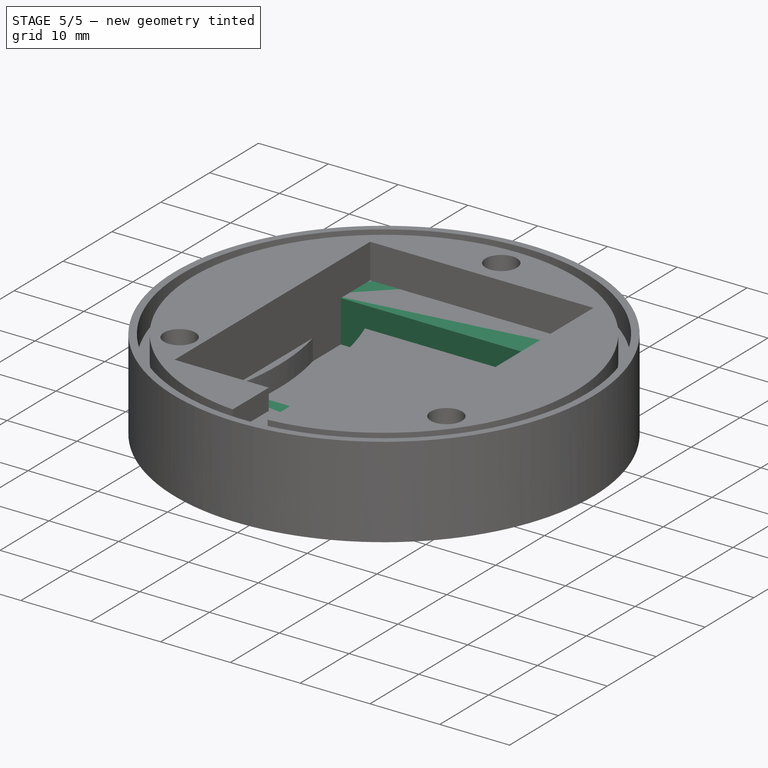
[diagram: stage 5 of 5 — iso view after this stage's code; geometry added in this stage tinted green]
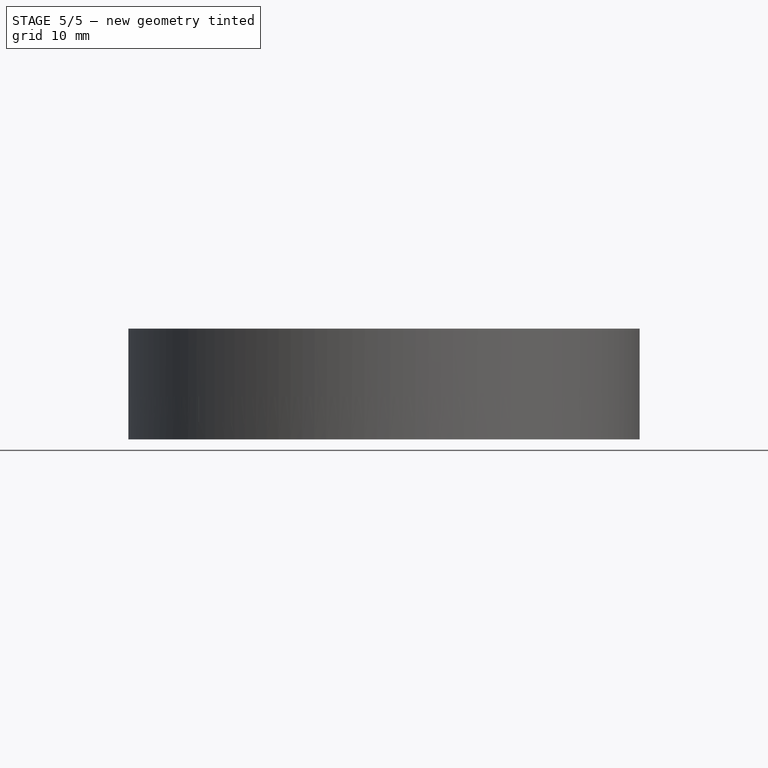
[diagram: stage 5 of 5 — front view after this stage's code; geometry added in this stage tinted green]
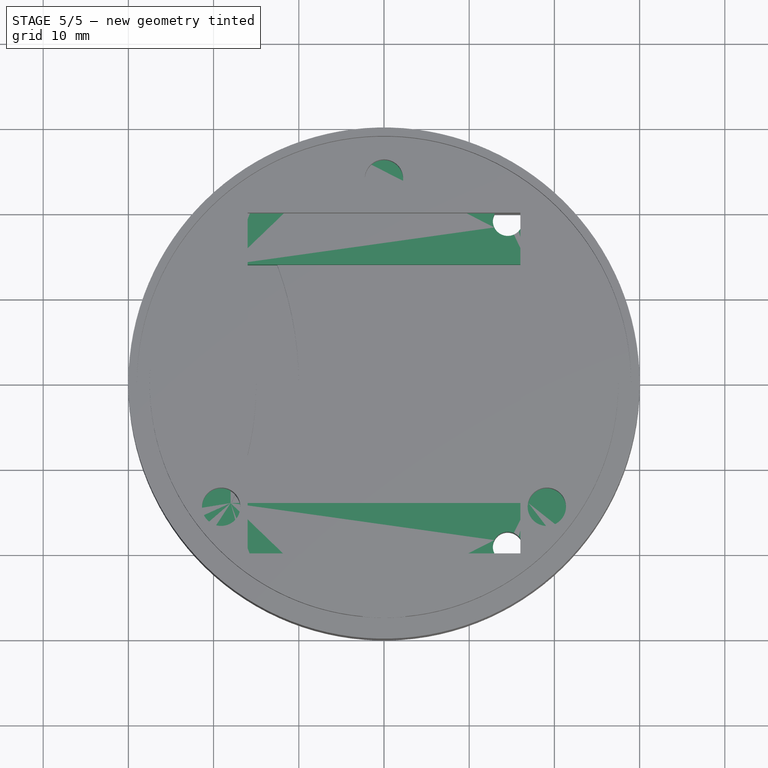
[diagram: stage 5 of 5 — top view after this stage's code; geometry added in this stage tinted green]
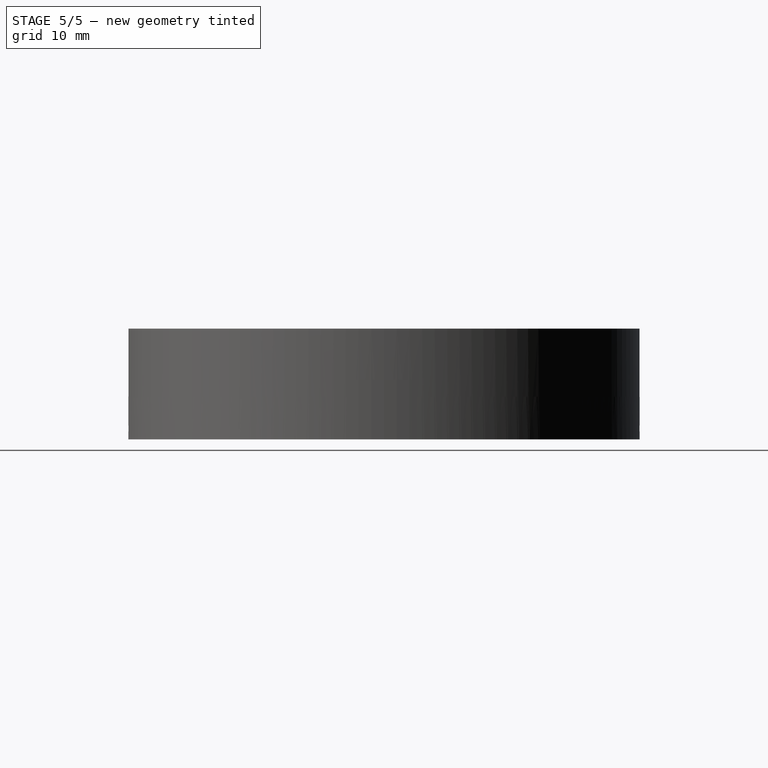
[diagram: stage 5 of 5 — right view after this stage's code; geometry added in this stage tinted green]
FEATURE [Sketcher::SketchObject] Sketch
  FullyConstrained = true
  MapMode = 5
  Support = -> [XY_Plane]
  sketch-geometry (1):
    g0: Circle CenterX=0 CenterY=0 CenterZ=0 NormalX=0 NormalY=0 NormalZ=1 AngleXU=0 Radius=27.5
  constraints (2):
    c: Coincident(g0,g-1)
    c: Diameter(g0) = 55
FEATURE [PartDesign::Pad] Pad
  Direction = (1,1,1)
  Length = 8
  Length2 = 100
  Profile = -> Sketch
  Type = 0
FEATURE [Part::Feature] Feature  label="Uno_Mini_Limited_Edition"
  Placement = pos=(0,0,20) rot=(0,0,1;0rad)
  shape: bbox 34.22 x 27.05 x 7.785 mm, 4322 faces, 58 solids (baked)
FEATURE [Sketcher::SketchObject] Sketch002
  FullyConstrained = true
  MapMode = 5
  Placement = pos=(0,0,8) rot=(0,0,1;0rad)
  Support = -> [Pad]
  sketch-geometry (8):
    g0: LineSegment StartX=-18 StartY=14 StartZ=0 EndX=-18 EndY=-14 EndZ=0
    g1: LineSegment StartX=-18 StartY=-14 StartZ=0 EndX=16.95 EndY=-14 EndZ=0
    g2: LineSegment StartX=16.95 StartY=-14 StartZ=0 EndX=16.95 EndY=-12.3 EndZ=0
    g3: LineSegment StartX=16.95 StartY=-12.3 StartZ=0 EndX=18 EndY=-11.25 EndZ=0
    g4: LineSegment StartX=18 StartY=-11.25 StartZ=0 EndX=18 EndY=6.25 EndZ=0
    g5: LineSegment StartX=18 StartY=6.25 StartZ=0 EndX=16.95 EndY=7.3 EndZ=0
    g6: LineSegment StartX=16.95 StartY=7.3 StartZ=0 EndX=16.95 EndY=14 EndZ=0
    g7: LineSegment StartX=16.95 StartY=14 StartZ=0 EndX=-18 EndY=14 EndZ=0
  constraints (23):
    c: Coincident(g0,g1)
    c: Coincident(g1,g2)
    c: Coincident(g2,g3)
    c: Coincident(g3,g4)
    c: Coincident(g4,g5)
    c: Coincident(g5,g6)
    c: Coincident(g6,g7)
    c: Coincident(g7,g0)
    c: Horizontal(g7)
    c: Vertical(g0)
    c: Horizontal(g1)
    c: Vertical(g6)
    c: Vertical(g2)
    c: Vertical(g4)
    c: Symmetric(g6,g1,g-1)
    c: DistanceY(g0,g0) = 28
    c: DistanceX(g0,g4) = 36
    c: DistanceY(g4,g4) = 17.5
    c: Angle(g2,g3) = 2.35619
    c: Angle(g5,g6) = 2.35619
    c: DistanceY(g6,g6) = 6.7
    c: DistanceY(g2,g2) = 1.7
    c: DistanceX(g0,g-1) = 18
FEATURE [PartDesign::Pocket] Pocket
  BaseFeature = -> Pad
  Length = 6
  Length2 = 100
  Profile = -> Sketch002
  Type = 0
FEATURE [Sketcher::SketchObject] Sketch013
  FullyConstrained = true
  MapMode = 5
  Placement = pos=(0,0,8) rot=(0,0,1;0rad)
  Support = -> [Pocket]
  sketch-geometry (3):
    g0: Circle CenterX=-24 CenterY=0 CenterZ=0 NormalX=0 NormalY=0 NormalZ=1 AngleXU=0 Radius=1.75
    g1: Circle CenterX=14.5208 CenterY=19.1088 CenterZ=0 NormalX=0 NormalY=0 NormalZ=1 AngleXU=0 Radius=1.75
    g2: Circle CenterX=14.5208 CenterY=-19.1088 CenterZ=0 NormalX=0 NormalY=0 NormalZ=1 AngleXU=0 Radius=1.75
  constraints (9):
    c: Diameter(g0) = 3.5
    c: Diameter(g1) = 3.5
    c: Diameter(g2) = 3.5
    c: Distance(g-1,g0) = 24
    c: Distance(g-1,g1) = 24
    c: Distance(g-1,g2) = 24
    c: DistanceY(g-1,g0) = 0
    c: Distance(g0,g1) = 43
    c: Distance(g0,g2) = 43
FEATURE [PartDesign::Pocket] Pocket006
  BaseFeature = -> Pocket
  Length = 10
  Length2 = 100
  Profile = -> Sketch013
  Type = 0
FEATURE [Sketcher::SketchObject] Sketch021
  FullyConstrained = true
  MapMode = 5
  Placement = pos=(0,0,2) rot=(0,0,1;0rad)
  Support = -> [Pocket006]
  sketch-geometry (8):
    g0: LineSegment StartX=-18 StartY=13 StartZ=0 EndX=17 EndY=13 EndZ=0
    g1: LineSegment StartX=17 StartY=13 StartZ=0 EndX=17 EndY=5 EndZ=0
    g2: LineSegment StartX=17 StartY=5 StartZ=0 EndX=-18 EndY=5 EndZ=0
    g3: LineSegment StartX=-18 StartY=5 StartZ=0 EndX=-18 EndY=13 EndZ=0
    g4: LineSegment StartX=-18 StartY=-5 StartZ=0 EndX=17 EndY=-5 EndZ=0
    g5: LineSegment StartX=17 StartY=-5 StartZ=0 EndX=17 EndY=-13 EndZ=0
    g6: LineSegment StartX=17 StartY=-13 StartZ=0 EndX=-18 EndY=-13 EndZ=0
    g7: LineSegment StartX=-18 StartY=-13 StartZ=0 EndX=-18 EndY=-5 EndZ=0
  constraints (24):
    c: Coincident(g0,g1)
    c: Coincident(g1,g2)
    c: Coincident(g2,g3)
    c: Coincident(g3,g0)
    c: Horizontal(g0)
    c: Horizontal(g2)
    c: Vertical(g1)
    c: Vertical(g3)
    c: Coincident(g4,g5)
    c: Coincident(g5,g6)
    c: Coincident(g6,g7)
    c: Coincident(g7,g4)
    c: Horizontal(g4)
    c: Horizontal(g6)
    c: Vertical(g5)
    c: Vertical(g7)
    c: DistanceX(g0,g0) = 35
    c: DistanceX(g4,g4) = 35
    c: DistanceX(g4,g-1) = 18
    c: DistanceX(g0,g-1) = 18
    c: DistanceY(g1,g1) = 8
    c: DistanceY(g5,g5) = 8
    c: DistanceY(g-1,g0) = 13
    c: DistanceY(g5,g-1) = 13
FEATURE [PartDesign::Pocket] Pocket013
  BaseFeature = -> Pocket006
  Length = 2
  Length2 = 100
  Profile = -> Sketch021
  Type = 0
FEATURE [Sketcher::SketchObject] Sketch022
  FullyConstrained = true
  MapMode = 5
  Placement = pos=(0,0,8) rot=(0,0,1;0rad)
  Support = -> [Pocket013]
  sketch-geometry (4):
    g0: LineSegment StartX=27.5 StartY=2.5 StartZ=0 EndX=24.5 EndY=2.5 EndZ=0
    g1: LineSegment StartX=24.5 StartY=2.5 StartZ=0 EndX=24.5 EndY=-2.5 EndZ=0
    g2: LineSegment StartX=24.5 StartY=-2.5 StartZ=0 EndX=27.5 EndY=-2.5 EndZ=0
    g3: LineSegment StartX=27.5 StartY=-2.5 StartZ=0 EndX=27.5 EndY=2.5 EndZ=0
  constraints (11):
    c: Coincident(g0,g1)
    c: Coincident(g1,g2)
    c: Coincident(g2,g3)
    c: Coincident(g3,g0)
    c: Horizontal(g0)
    c: Horizontal(g2)
    c: Vertical(g1)
    c: DistanceY(g1,g1) = 5
    c: Symmetric(g0,g2,g-1)
    c: DistanceX(g0,g0) = 3
    c: DistanceX(g-1,g0) = 27.5
FEATURE [PartDesign::Pocket] Pocket014
  BaseFeature = -> Pocket013
  Length = 13
  Length2 = 100
  Profile = -> Sketch022
  Type = 0
FEATURE [PartDesign::Body] Body
  Group = -> [Sketch,Pad,Sketch002,Pocket,Sketch004,Sketch013,Pocket006,Sketch021,Pocket013,Sketch022,Pocket014]
  Origin = -> Origin
  Placement = pos=(0,0,18) rot=(0,0,1;0rad)
  Tip = -> Pocket014
FEATURE [Sketcher::SketchObject] Sketch023
  FullyConstrained = true
  MapMode = 5
  Placement = pos=(0,0,13) rot=(0,0,1;0rad)
  Support = -> [Pocket012]
  sketch-geometry (3):
    g0: Circle CenterX=-19.1088 CenterY=-14.5208 CenterZ=0 NormalX=0 NormalY=0 NormalZ=1 AngleXU=0 Radius=2.25
    g1: Circle CenterX=0 CenterY=24 CenterZ=0 NormalX=0 NormalY=0 NormalZ=1 AngleXU=0 Radius=2.25
    g2: Circle CenterX=19.1088 CenterY=-14.5208 CenterZ=0 NormalX=0 NormalY=0 NormalZ=1 AngleXU=0 Radius=2.25
  constraints (9):
    c: Distance(g-1,g1) = 24
    c: Distance(g2,g-1) = 24
    c: Distance(g0,g-1) = 24
    c: Diameter(g0) = 4.5
    c: Diameter(g1) = 4.5
    c: Diameter(g2) = 4.5
    c: Distance(g1,g2) = 43
    c: Distance(g1,g0) = 43
    c: DistanceX(g-1,g1) = 0
FEATURE [PartDesign::Pocket] Pocket015
  BaseFeature = -> Pocket012
  Length = 20
  Length2 = 100
  Profile = -> Sketch023
  Type = 0
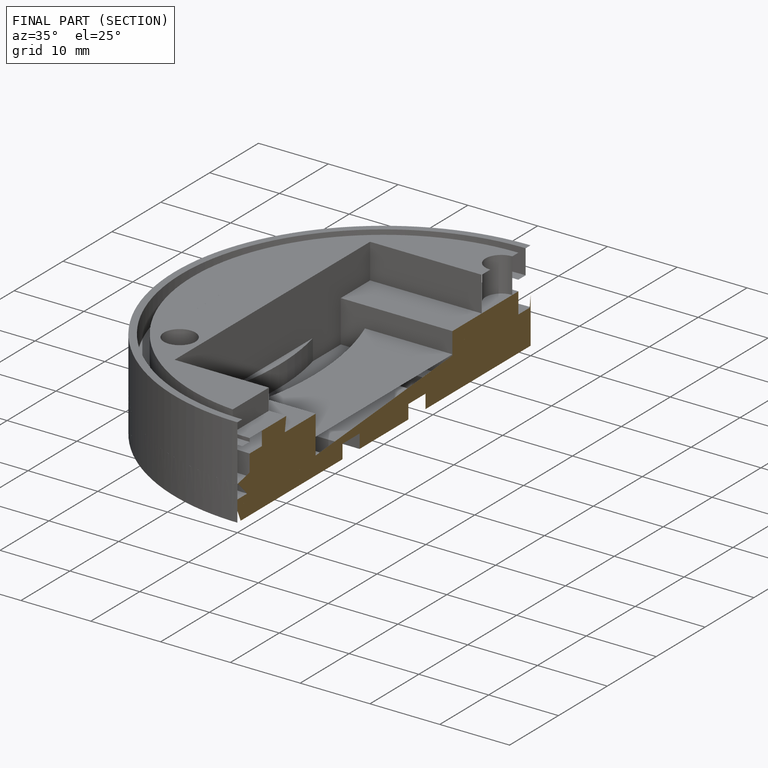
[diagram: finished part — half-section view (interior)]
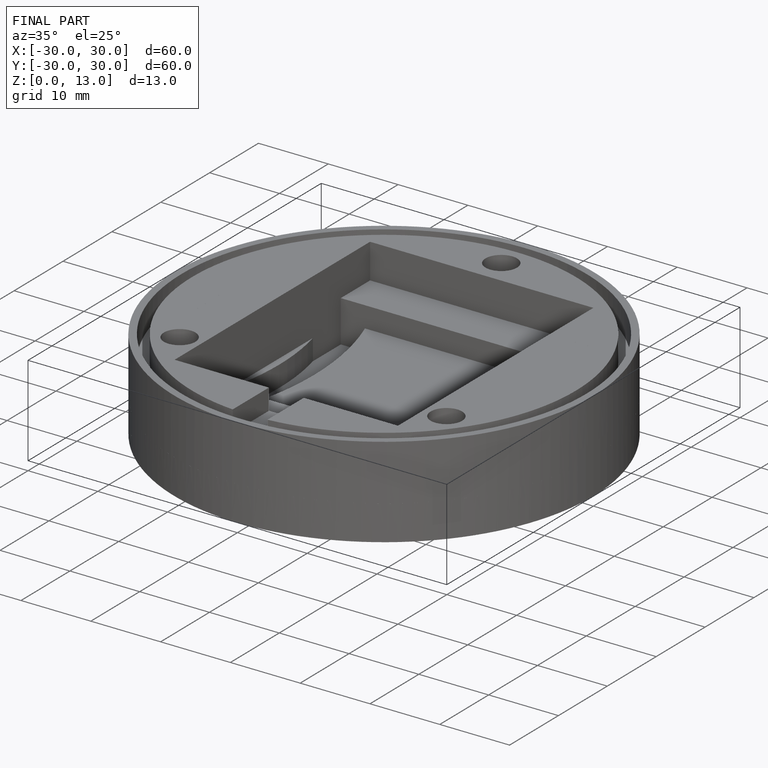
[diagram: finished part — iso view with bounding-box wireframe]
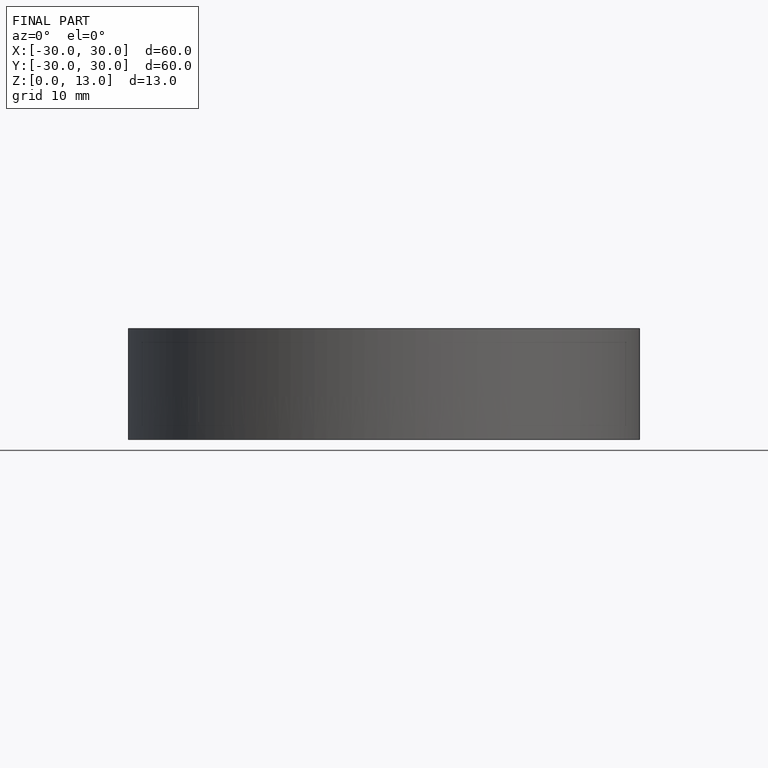
[diagram: finished part — front view with bounding-box wireframe]
